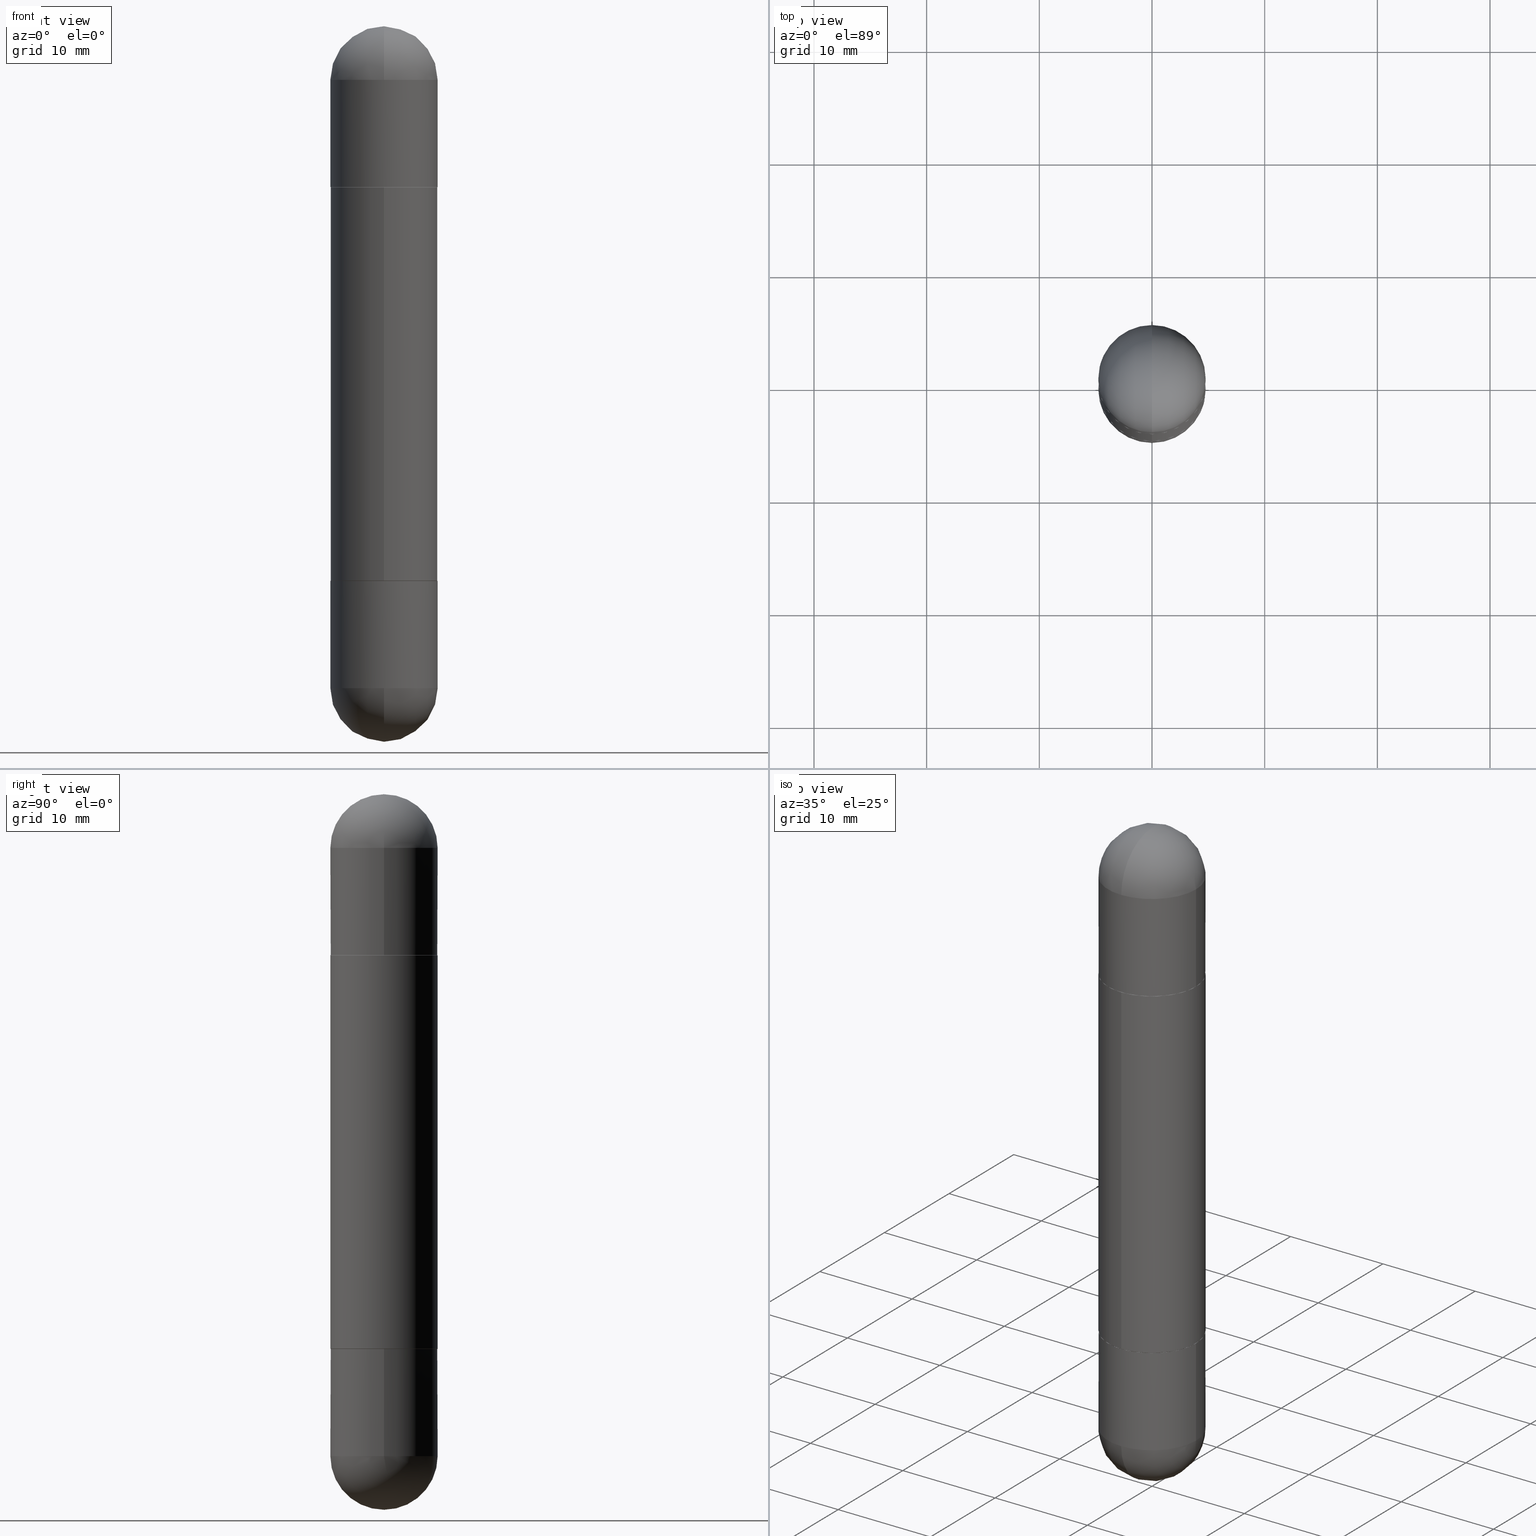
[diagram: canonical four-view strip — front | top / right | iso, engineering-drawing reading convention]
A machine part, canonical four-view strip (front | top / right | iso — engineering-drawing reading convention). The complete STEP part file that produces these views, byte-faithful:
ISO-10303-21;
HEADER;
FILE_DESCRIPTION (( 'STEP AP203' ),
    '1' );
FILE_NAME ('31436.STEP',
    '2024-03-01T12:41:48',
    ( '' ),
    ( '' ),
    'SwSTEP 2.0',
    'SolidWorks 2023',
    '' );
FILE_SCHEMA (( 'CONFIG_CONTROL_DESIGN' ));
ENDSEC;

DATA;
#1 = CARTESIAN_POINT ( 'NONE',  ( 5.655146614303128380E-29, -8.074050596074775072E-15, -2.312500000000000000 ) ) ;
#2 = CARTESIAN_POINT ( 'NONE',  ( -1.302322539388441071E-15, -0.1865000000000067437, -0.5620000000000013873 ) ) ;
#3 = CC_DESIGN_SECURITY_CLASSIFICATION ( #805, ( #496 ) ) ;
#4 = ORIENTED_EDGE ( 'NONE', *, *, #210, .F. ) ;
#5 = DIRECTION ( 'NONE',  ( -6.982962677686265922E-15, -1.000000000000000000, 0.000000000000000000 ) ) ;
#6 = VECTOR ( 'NONE', #579, 39.37007874015748143 ) ;
#7 = CARTESIAN_POINT ( 'NONE',  ( 1.286343374582193722E-15, 0.1874999999999934497, -1.937000000000000499 ) ) ;
#8 = DIRECTION ( 'NONE',  ( -2.444965825479166385E-29, 3.492201635841979178E-15, -1.000000000000000000 ) ) ;
#9 = LINE ( 'NONE', #766, #771 ) ;
#10 = DIRECTION ( 'NONE',  ( -2.444965825479166385E-29, 3.492201635841978784E-15, -1.000000000000000000 ) ) ;
#11 = ORIENTED_EDGE ( 'NONE', *, *, #499, .F. ) ;
#12 = VERTEX_POINT ( 'NONE', #72 ) ;
#13 = CARTESIAN_POINT ( 'NONE',  ( -0.1875000000000000278, -6.133927340794232602E-15, -0.5620000000000007212 ) ) ;
#14 = EDGE_CURVE ( 'NONE', #319, #111, #464, .T. ) ;
#15 = ORIENTED_EDGE ( 'NONE', *, *, #675, .F. ) ;
#16 = APPROVAL_PERSON_ORGANIZATION ( #124, #99, #376 ) ;
#17 = DIRECTION ( 'NONE',  ( -0.000000000000000000, -0.000000000000000000, -1.000000000000000000 ) ) ;
#18 = VERTEX_POINT ( 'NONE', #770 ) ;
#19 = DIRECTION ( 'NONE',  ( 6.860497997771530774E-15, 1.000000000000000000, 0.000000000000000000 ) ) ;
#20 = CIRCLE ( 'NONE', #621, 0.1875000000000001110 ) ;
#21 = AXIS2_PLACEMENT_3D ( 'NONE', #273, #218, #36 ) ;
#22 = VERTEX_POINT ( 'NONE', #196 ) ;
#23 = FACE_OUTER_BOUND ( 'NONE', #419, .T. ) ;
#24 = DIRECTION ( 'NONE',  ( -2.444965825479166385E-29, 3.492201635841978784E-15, -1.000000000000000000 ) ) ;
#25 = CARTESIAN_POINT ( 'NONE',  ( 0.000000000000000000, 0.000000000000000000, -2.500000000000000444 ) ) ;
#26 = FACE_OUTER_BOUND ( 'NONE', #368, .T. ) ;
#27 = APPROVAL ( #495, 'UNSPECIFIED' ) ;
#28 = AXIS2_PLACEMENT_3D ( 'NONE', #290, #627, #500 ) ;
#29 = CARTESIAN_POINT ( 'NONE',  ( -1.302322539388441071E-15, -0.1865000000000067437, -0.5620000000000013873 ) ) ;
#30 = EDGE_CURVE ( 'NONE', #423, #807, #278, .T. ) ;
#31 = CARTESIAN_POINT ( 'NONE',  ( -1.332267629550134009E-15, -0.1875000000000084932, -2.312499999999999556 ) ) ;
#32 = CIRCLE ( 'NONE', #149, 0.1875000000000000555 ) ;
#33 = DIRECTION ( 'NONE',  ( -4.937700262164969294E-15, -0.7071067811866054154, -0.7071067811864896191 ) ) ;
#34 = CARTESIAN_POINT ( 'NONE',  ( 0.000000000000000000, 0.000000000000000000, -2.500000000000000444 ) ) ;
#35 = EDGE_CURVE ( 'NONE', #200, #319, #604, .T. ) ;
#36 = DIRECTION ( 'NONE',  ( 1.000000000000000000, -6.982962677686270655E-15, 0.000000000000000000 ) ) ;
#37 = DIRECTION ( 'NONE',  ( -6.982962677686265922E-15, -1.000000000000000000, 0.000000000000000000 ) ) ;
#38 = ORIENTED_EDGE ( 'NONE', *, *, #790, .T. ) ;
#39 = CARTESIAN_POINT ( 'NONE',  ( 0.000000000000000000, 0.000000000000000000, -2.500000000000000444 ) ) ;
#40 = DIRECTION ( 'NONE',  ( 1.000000000000000000, -6.982962677686266711E-15, -4.883557194083113462E-29 ) ) ;
#41 = MANIFOLD_SOLID_BREP ( 'Mirror4[3]', #498 ) ;
#42 = VERTEX_POINT ( 'NONE', #715 ) ;
#43 = AXIS2_PLACEMENT_3D ( 'NONE', #708, #586, #343 ) ;
#44 = AXIS2_PLACEMENT_3D ( 'NONE', #250, #174, #501 ) ;
#45 = DIRECTION ( 'NONE',  ( 1.000000000000000000, -6.982962677686270655E-15, 0.000000000000000000 ) ) ;
#46 = CARTESIAN_POINT ( 'NONE',  ( 5.324026836389243254E-29, -8.548232964214825368E-15, -0.1875000000000006661 ) ) ;
#47 = ORIENTED_EDGE ( 'NONE', *, *, #535, .T. ) ;
#48 = ORIENTED_EDGE ( 'NONE', *, *, #378, .F. ) ;
#49 = ADVANCED_FACE ( 'NONE', ( #702 ), #658, .T. ) ;
#50 = CARTESIAN_POINT ( 'NONE',  ( -0.1875000000000000555, 1.286343374582162562E-15, -2.500000000000000444 ) ) ;
#51 = VERTEX_POINT ( 'NONE', #142 ) ;
#52 = CARTESIAN_POINT ( 'NONE',  ( 1.328714915871435071E-15, 0.1864999999999932268, -1.938000000000000389 ) ) ;
#53 = CARTESIAN_POINT ( 'NONE',  ( 0.1875000000000000555, -8.729576217442571356E-15, -2.312500000000000000 ) ) ;
#54 = ORIENTED_EDGE ( 'NONE', *, *, #742, .T. ) ;
#55 = AXIS2_PLACEMENT_3D ( 'NONE', #779, #156, #600 ) ;
#56 = ORIENTED_EDGE ( 'NONE', *, *, #63, .T. ) ;
#57 = CALENDAR_DATE ( 2024, 1, 3 ) ;
#58 = CIRCLE ( 'NONE', #783, 0.1864999999999999714 ) ;
#59 = CARTESIAN_POINT ( 'NONE',  ( -1.302322539388441071E-15, -0.1865000000000067437, -1.937999999999999279 ) ) ;
#60 = CARTESIAN_POINT ( 'NONE',  ( 4.738343769778624379E-29, -6.767886770261754503E-15, -1.937999999999999945 ) ) ;
#61 = AXIS2_PLACEMENT_3D ( 'NONE', #320, #10, #74 ) ;
#62 = PERSON_AND_ORGANIZATION_ROLE ( 'creator' ) ;
#63 = EDGE_CURVE ( 'NONE', #576, #707, #808, .T. ) ;
#64 = CARTESIAN_POINT ( 'NONE',  ( 1.279482876584437493E-15, 0.1864999999999932268, -0.5620000000000000551 ) ) ;
#65 = DATE_TIME_ROLE ( 'creation_date' ) ;
#66 = CARTESIAN_POINT ( 'NONE',  ( 4.739318546386794397E-29, -6.766490834678016045E-15, -0.5620000000000007212 ) ) ;
#67 = VERTEX_POINT ( 'NONE', #578 ) ;
#68 = EDGE_LOOP ( 'NONE', ( #617, #493 ) ) ;
#69 = DIRECTION ( 'NONE',  ( 4.851104656541377638E-15, 0.7071067811866103003, -0.7071067811864847341 ) ) ;
#70 = AXIS2_PLACEMENT_3D ( 'NONE', #732, #734, #407 ) ;
#71 = AXIS2_PLACEMENT_3D ( 'NONE', #812, #187, #439 ) ;
#72 = CARTESIAN_POINT ( 'NONE',  ( 1.286343374582210880E-15, 0.1874999999999935052, -0.5630000000000001670 ) ) ;
#73 = PRODUCT_DEFINITION_SHAPE ( 'NONE', 'NONE',  #434 ) ;
#74 = DIRECTION ( 'NONE',  ( -6.982962677686266711E-15, -1.000000000000000000, -2.913971193241879189E-15 ) ) ;
#75 = EDGE_LOOP ( 'NONE', ( #503, #509, #255, #261 ) ) ;
#76 = DIRECTION ( 'NONE',  ( -2.445468806185136877E-29, 3.491481338843145188E-15, 1.000000000000000000 ) ) ;
#77 = EDGE_CURVE ( 'NONE', #690, #51, #108, .T. ) ;
#78 = DIRECTION ( 'NONE',  ( -1.000000000000000000, 6.982962677686265922E-15, 4.883557194083112340E-29 ) ) ;
#79 = ORIENTED_EDGE ( 'NONE', *, *, #138, .T. ) ;
#80 = DIRECTION ( 'NONE',  ( 6.982962677686266711E-15, 1.000000000000000000, -2.913971193241875639E-15 ) ) ;
#81 = ADVANCED_BREP_SHAPE_REPRESENTATION ( '31436', ( #315, #291, #41, #300, #591, #551 ), #561 ) ;
#82 = CARTESIAN_POINT ( 'NONE',  ( 5.324026836389243254E-29, -8.548232964214825368E-15, -0.1875000000000006661 ) ) ;
#83 = EDGE_LOOP ( 'NONE', ( #321, #589, #139, #520 ) ) ;
#84 = AXIS2_PLACEMENT_3D ( 'NONE', #547, #275, #539 ) ;
#85 = VERTEX_POINT ( 'NONE', #7 ) ;
#86 = DIRECTION ( 'NONE',  ( -2.444965825479166385E-29, 3.492201635841978784E-15, 1.000000000000000000 ) ) ;
#87 = CARTESIAN_POINT ( 'NONE',  ( 4.738343769778624379E-29, -6.767886770261754503E-15, -0.5620000000000007212 ) ) ;
#88 = DIRECTION ( 'NONE',  ( 2.445468806185136597E-29, -3.491481338843145583E-15, 1.000000000000000000 ) ) ;
#89 = DIRECTION ( 'NONE',  ( -2.445468806185136877E-29, 3.491481338843145188E-15, -1.000000000000000000 ) ) ;
#90 = VERTEX_POINT ( 'NONE', #13 ) ;
#91 = PLANE ( 'NONE',  #95 ) ;
#92 = EDGE_CURVE ( 'NONE', #111, #619, #310, .T. ) ;
#93 = CARTESIAN_POINT ( 'NONE',  ( 4.738343769778624379E-29, -6.767886770261754503E-15, -0.5620000000000007212 ) ) ;
#94 = CIRCLE ( 'NONE', #256, 0.1864999999999999714 ) ;
#95 = AXIS2_PLACEMENT_3D ( 'NONE', #605, #726, #350 ) ;
#96 = PLANE ( 'NONE',  #699 ) ;
#97 = DIRECTION ( 'NONE',  ( 2.444965825479166385E-29, -3.492201635841978784E-15, 1.000000000000000000 ) ) ;
#98 = ORIENTED_EDGE ( 'NONE', *, *, #381, .F. ) ;
#99 = APPROVAL ( #815, 'UNSPECIFIED' ) ;
#100 = DIRECTION ( 'NONE',  ( 6.982962677686265922E-15, 1.000000000000000000, 0.000000000000000000 ) ) ;
#101 = SPHERICAL_SURFACE ( 'NONE', #659, 0.1875000000000003331 ) ;
#102 = VERTEX_POINT ( 'NONE', #467 ) ;
#103 = EDGE_CURVE ( 'NONE', #716, #119, #9, .T. ) ;
#104 = FACE_OUTER_BOUND ( 'NONE', #197, .T. ) ;
#105 = DIRECTION ( 'NONE',  ( -2.445468806185136877E-29, 3.491481338843145188E-15, -1.000000000000000000 ) ) ;
#106 = ORIENTED_EDGE ( 'NONE', *, *, #737, .T. ) ;
#107 = ORIENTED_EDGE ( 'NONE', *, *, #477, .T. ) ;
#108 = CIRCLE ( 'NONE', #667, 0.1875000000000000555 ) ;
#109 = AXIS2_PLACEMENT_3D ( 'NONE', #167, #746, #680 ) ;
#110 = DIRECTION ( 'NONE',  ( 1.000000000000000000, -6.982962677686270655E-15, 0.000000000000000000 ) ) ;
#111 = VERTEX_POINT ( 'NONE', #145 ) ;
#112 = EDGE_CURVE ( 'NONE', #711, #200, #339, .T. ) ;
#113 = VERTEX_POINT ( 'NONE', #2 ) ;
#114 = ORIENTED_EDGE ( 'NONE', *, *, #489, .T. ) ;
#115 = PERSON_AND_ORGANIZATION_ROLE ( 'design_owner' ) ;
#116 = DIRECTION ( 'NONE',  ( -2.444965825479166385E-29, 3.492201635841978784E-15, -1.000000000000000000 ) ) ;
#117 = UNCERTAINTY_MEASURE_WITH_UNIT (LENGTH_MEASURE( 1.000000000000000082E-05 ), #301, 'distance_accuracy_value', 'NONE');
#118 = CARTESIAN_POINT ( 'NONE',  ( 5.655146614303128380E-29, -8.074050596074775072E-15, -0.1875000000000006661 ) ) ;
#119 = VERTEX_POINT ( 'NONE', #264 ) ;
#120 = COORDINATED_UNIVERSAL_TIME_OFFSET ( 5, 0, .BEHIND. ) ;
#121 = DIRECTION ( 'NONE',  ( 1.000000000000000000, -6.982962677686265922E-15, 4.883557194083112340E-29 ) ) ;
#122 = EDGE_CURVE ( 'NONE', #329, #67, #58, .T. ) ;
#123 = FACE_OUTER_BOUND ( 'NONE', #68, .T. ) ;
#124 = PERSON_AND_ORGANIZATION ( #392, #217 ) ;
#125 = AXIS2_PLACEMENT_3D ( 'NONE', #277, #163, #483 ) ;
#126 = DIRECTION ( 'NONE',  ( -2.444965825479166385E-29, 3.492201635841978784E-15, -1.000000000000000000 ) ) ;
#127 = AXIS2_PLACEMENT_3D ( 'NONE', #447, #262, #521 ) ;
#128 = CC_DESIGN_PERSON_AND_ORGANIZATION_ASSIGNMENT ( #748, #560, ( #434 ) ) ;
#129 = DIRECTION ( 'NONE',  ( 1.000000000000000000, -6.982962677686270655E-15, 0.000000000000000000 ) ) ;
#130 = ORIENTED_EDGE ( 'NONE', *, *, #468, .T. ) ;
#131 = DIRECTION ( 'NONE',  ( 2.445468806185136597E-29, -3.491481338843145583E-15, 1.000000000000000000 ) ) ;
#132 = EDGE_LOOP ( 'NONE', ( #235, #56, #775, #714 ) ) ;
#133 = AXIS2_PLACEMENT_3D ( 'NONE', #25, #533, #344 ) ;
#134 = FACE_OUTER_BOUND ( 'NONE', #437, .T. ) ;
#135 = ORIENTED_EDGE ( 'NONE', *, *, #767, .F. ) ;
#136 = AXIS2_PLACEMENT_3D ( 'NONE', #34, #345, #283 ) ;
#137 = CARTESIAN_POINT ( 'NONE',  ( 5.324026836389243254E-29, -8.548232964214825368E-15, -2.312500000000000000 ) ) ;
#138 = EDGE_CURVE ( 'NONE', #42, #12, #445, .T. ) ;
#139 = ORIENTED_EDGE ( 'NONE', *, *, #742, .F. ) ;
#140 = CARTESIAN_POINT ( 'NONE',  ( 5.324026836389243254E-29, -8.548232964214825368E-15, -0.1875000000000006661 ) ) ;
#141 = ADVANCED_FACE ( 'NONE', ( #663 ), #430, .T. ) ;
#142 = CARTESIAN_POINT ( 'NONE',  ( 1.309305502066231017E-15, 0.1874999999999918954, -0.1875000000000000278 ) ) ;
#143 = CARTESIAN_POINT ( 'NONE',  ( 1.309305502066222340E-15, 0.1874999999999932554, -0.5620000000000001661 ) ) ;
#144 = EDGE_CURVE ( 'NONE', #487, #764, #781, .T. ) ;
#145 = CARTESIAN_POINT ( 'NONE',  ( 0.1875000000000000278, -8.075796336744191053E-15, -1.937999999999999945 ) ) ;
#146 = LOCAL_TIME ( 7, 41, 48.00000000000000000, #365 ) ;
#147 = FACE_OUTER_BOUND ( 'NONE', #263, .T. ) ;
#148 = SPHERICAL_SURFACE ( 'NONE', #593, 0.1875000000000003331 ) ;
#149 = AXIS2_PLACEMENT_3D ( 'NONE', #534, #479, #602 ) ;
#150 = DIRECTION ( 'NONE',  ( 2.438088387897960049E-29, -3.491481338843145188E-15, -1.000000000000000000 ) ) ;
#151 = DIRECTION ( 'NONE',  ( 2.444965825479166385E-29, -3.492201635841978784E-15, 1.000000000000000000 ) ) ;
#152 = ORIENTED_EDGE ( 'NONE', *, *, #158, .F. ) ;
#153 = SPHERICAL_SURFACE ( 'NONE', #692, 0.1875000000000003331 ) ;
#154 = DIRECTION ( 'NONE',  ( 1.000000000000000000, -6.982962677686266711E-15, -4.883557194083113462E-29 ) ) ;
#155 = ORIENTED_EDGE ( 'NONE', *, *, #138, .F. ) ;
#156 = DIRECTION ( 'NONE',  ( -2.445468806185136597E-29, 3.491481338843145583E-15, 1.000000000000000000 ) ) ;
#157 = DIRECTION ( 'NONE',  ( -6.982962677686265922E-15, -1.000000000000000000, -3.661994629576761260E-15 ) ) ;
#158 = EDGE_CURVE ( 'NONE', #764, #18, #179, .T. ) ;
#159 = AXIS2_PLACEMENT_3D ( 'NONE', #564, #754, #302 ) ;
#160 = ORIENTED_EDGE ( 'NONE', *, *, #767, .T. ) ;
#161 = AXIS2_PLACEMENT_3D ( 'NONE', #575, #700, #768 ) ;
#162 = CARTESIAN_POINT ( 'NONE',  ( 4.738343769778624379E-29, -6.767886770261754503E-15, -1.937999999999999945 ) ) ;
#163 = DIRECTION ( 'NONE',  ( -0.000000000000000000, -0.000000000000000000, -1.000000000000000000 ) ) ;
#164 = ORIENTED_EDGE ( 'NONE', *, *, #233, .T. ) ;
#165 = EDGE_CURVE ( 'NONE', #383, #113, #94, .T. ) ;
#166 = DIRECTION ( 'NONE',  ( -6.982962677686266711E-15, -1.000000000000000000, -2.913971193241879189E-15 ) ) ;
#167 = CARTESIAN_POINT ( 'NONE',  ( 4.738343769778624379E-29, -6.767886770261754503E-15, -0.5620000000000007212 ) ) ;
#168 = ORIENTED_EDGE ( 'NONE', *, *, #626, .T. ) ;
#169 = ORIENTED_EDGE ( 'NONE', *, *, #628, .F. ) ;
#170 = VERTEX_POINT ( 'NONE', #412 ) ;
#171 = FACE_OUTER_BOUND ( 'NONE', #206, .T. ) ;
#172 = CIRCLE ( 'NONE', #426, 0.1875000000000003331 ) ;
#173 = AXIS2_PLACEMENT_3D ( 'NONE', #143, #403, #731 ) ;
#174 = DIRECTION ( 'NONE',  ( -2.444965825479166385E-29, 3.492201635841978784E-15, 1.000000000000000000 ) ) ;
#175 = ORIENTED_EDGE ( 'NONE', *, *, #778, .T. ) ;
#176 = EDGE_LOOP ( 'NONE', ( #739, #701, #644, #396 ) ) ;
#177 = PERSON_AND_ORGANIZATION_ROLE ( 'classification_officer' ) ;
#178 = EDGE_CURVE ( 'NONE', #690, #653, #672, .T. ) ;
#179 = CIRCLE ( 'NONE', #245, 0.1875000000000000278 ) ;
#180 = CONICAL_SURFACE ( 'NONE', #341, 0.1864999999999999714, 0.7853981633975336552 ) ;
#181 = DIRECTION ( 'NONE',  ( -2.444965825479166385E-29, 3.492201635841978784E-15, -1.000000000000000000 ) ) ;
#182 = DIRECTION ( 'NONE',  ( -2.444965825479166385E-29, 3.492201635841979178E-15, -1.000000000000000000 ) ) ;
#183 = ORIENTED_EDGE ( 'NONE', *, *, #92, .F. ) ;
#184 = CALENDAR_DATE ( 2024, 1, 3 ) ;
#185 = EDGE_CURVE ( 'NONE', #12, #42, #311, .T. ) ;
#186 = DIRECTION ( 'NONE',  ( 1.000000000000000000, -6.982962677686266711E-15, 0.000000000000000000 ) ) ;
#187 = DIRECTION ( 'NONE',  ( 1.000000000000000000, -6.860497997771530774E-15, -4.840798879624142912E-29 ) ) ;
#188 = PERSON_AND_ORGANIZATION ( #392, #217 ) ;
#189 = DIRECTION ( 'NONE',  ( 1.000000000000000000, 0.000000000000000000, 0.000000000000000000 ) ) ;
#190 = DIRECTION ( 'NONE',  ( 6.982962677686266711E-15, 1.000000000000000000, 3.460340791974727494E-15 ) ) ;
#191 = ORIENTED_EDGE ( 'NONE', *, *, #35, .T. ) ;
#192 = APPROVAL ( #752, 'UNSPECIFIED' ) ;
#193 = FACE_OUTER_BOUND ( 'NONE', #787, .T. ) ;
#194 = DIRECTION ( 'NONE',  ( -2.445468806185136597E-29, 3.491481338843145583E-15, 1.000000000000000000 ) ) ;
#195 = LINE ( 'NONE', #252, #6 ) ;
#196 = CARTESIAN_POINT ( 'NONE',  ( 0.1875000000000000555, -8.729576217442571356E-15, -0.1875000000000006661 ) ) ;
#197 = EDGE_LOOP ( 'NONE', ( #603, #155, #387, #523 ) ) ;
#198 = EDGE_CURVE ( 'NONE', #22, #337, #32, .T. ) ;
#199 = DIRECTION ( 'NONE',  ( 1.000000000000000000, -6.982962677686266711E-15, 0.000000000000000000 ) ) ;
#200 = VERTEX_POINT ( 'NONE', #31 ) ;
#201 = DIRECTION ( 'NONE',  ( 1.000000000000000000, -6.982962677686266711E-15, 0.000000000000000000 ) ) ;
#202 = APPROVAL_PERSON_ORGANIZATION ( #236, #27, #502 ) ;
#203 = ORIENTED_EDGE ( 'NONE', *, *, #424, .T. ) ;
#204 = CLOSED_SHELL ( 'NONE', ( #491, #318, #639, #712, #654 ) ) ;
#205 = CYLINDRICAL_SURFACE ( 'NONE', #312, 0.1875000000000000555 ) ;
#206 = EDGE_LOOP ( 'NONE', ( #452, #335, #164, #668 ) ) ;
#207 = AXIS2_PLACEMENT_3D ( 'NONE', #607, #222, #777 ) ;
#208 = AXIS2_PLACEMENT_3D ( 'NONE', #1, #508, #129 ) ;
#209 = DIRECTION ( 'NONE',  ( 1.000000000000000000, -6.982962677686270655E-15, 0.000000000000000000 ) ) ;
#210 = EDGE_CURVE ( 'NONE', #399, #51, #230, .T. ) ;
#211 = CARTESIAN_POINT ( 'NONE',  ( 4.738343769778624379E-29, -6.767886770261754503E-15, -0.5620000000000007212 ) ) ;
#212 = ORIENTED_EDGE ( 'NONE', *, *, #628, .T. ) ;
#213 = CARTESIAN_POINT ( 'NONE',  ( 4.739318546386794397E-29, -6.766490834678016045E-15, -1.937999999999999945 ) ) ;
#214 = CARTESIAN_POINT ( 'NONE',  ( 4.738343769778624379E-29, -6.767886770261754503E-15, -0.5620000000000007212 ) ) ;
#215 = CARTESIAN_POINT ( 'NONE',  ( 5.324026836389243254E-29, -8.548232964214825368E-15, -0.1875000000000006661 ) ) ;
#216 = APPLICATION_CONTEXT ( 'configuration controlled 3d designs of mechanical parts and assemblies' ) ;
#217 = ORGANIZATION ( 'UNSPECIFIED', 'UNSPECIFIED', '' ) ;
#218 = DIRECTION ( 'NONE',  ( 2.445468806185136597E-29, -3.491481338843145583E-15, 1.000000000000000000 ) ) ;
#219 = CARTESIAN_POINT ( 'NONE',  ( 4.739318546386794397E-29, -6.766490834678016045E-15, -0.5620000000000007212 ) ) ;
#220 = VECTOR ( 'NONE', #789, 39.37007874015748143 ) ;
#221 = DIRECTION ( 'NONE',  ( 1.000000000000000000, -6.982962677686266711E-15, -4.883557194083113462E-29 ) ) ;
#222 = DIRECTION ( 'NONE',  ( -2.444965825479166385E-29, 3.492201635841978784E-15, 1.000000000000000000 ) ) ;
#223 = EDGE_LOOP ( 'NONE', ( #135, #800 ) ) ;
#224 = FACE_OUTER_BOUND ( 'NONE', #803, .T. ) ;
#225 = DIRECTION ( 'NONE',  ( -1.000000000000000000, 6.982962677686266711E-15, -4.883557194083113462E-29 ) ) ;
#226 = AXIS2_PLACEMENT_3D ( 'NONE', #660, #86, #795 ) ;
#227 = DIRECTION ( 'NONE',  ( -6.982962677686265922E-15, -1.000000000000000000, -3.492201635841979178E-15 ) ) ;
#228 = CARTESIAN_POINT ( 'NONE',  ( 4.735898803953145257E-29, -6.764394568625911806E-15, -0.5630000000000008331 ) ) ;
#229 = CLOSED_SHELL ( 'NONE', ( #552, #49, #247, #612, #642 ) ) ;
#230 = CIRCLE ( 'NONE', #724, 0.1875000000000003331 ) ;
#231 = AXIS2_PLACEMENT_3D ( 'NONE', #66, #88, #542 ) ;
#232 = EDGE_CURVE ( 'NONE', #119, #686, #416, .T. ) ;
#233 = EDGE_CURVE ( 'NONE', #85, #704, #697, .T. ) ;
#234 = CARTESIAN_POINT ( 'NONE',  ( 4.735898803953145257E-29, -6.764394568625911806E-15, -0.5630000000000008331 ) ) ;
#235 = ORIENTED_EDGE ( 'NONE', *, *, #549, .F. ) ;
#236 = PERSON_AND_ORGANIZATION ( #392, #217 ) ;
#237 =( NAMED_UNIT ( * ) PLANE_ANGLE_UNIT ( ) SI_UNIT ( $, .RADIAN. ) );
#238 = CARTESIAN_POINT ( 'NONE',  ( 5.655146614303128380E-29, -8.074050596074775072E-15, -2.312500000000000000 ) ) ;
#239 = LOCAL_TIME ( 7, 41, 48.00000000000000000, #691 ) ;
#240 = DIRECTION ( 'NONE',  ( -2.444965825479166385E-29, 3.492201635841979178E-15, -1.000000000000000000 ) ) ;
#241 = ORIENTED_EDGE ( 'NONE', *, *, #424, .F. ) ;
#242 = CALENDAR_DATE ( 2024, 1, 3 ) ;
#243 = AXIS2_PLACEMENT_3D ( 'NONE', #213, #258, #201 ) ;
#244 = CIRCLE ( 'NONE', #159, 0.1875000000000000555 ) ;
#245 = AXIS2_PLACEMENT_3D ( 'NONE', #219, #793, #596 ) ;
#246 = DIRECTION ( 'NONE',  ( -6.982962677686265922E-15, -1.000000000000000000, 2.929595703661408850E-15 ) ) ;
#247 = ADVANCED_FACE ( 'NONE', ( #286 ), #101, .T. ) ;
#248 = CARTESIAN_POINT ( 'NONE',  ( 1.282913125583324384E-15, 0.1864999999999932268, -0.5620000000000000551 ) ) ;
#249 = MECHANICAL_CONTEXT ( 'NONE', #346, 'mechanical' ) ;
#250 = CARTESIAN_POINT ( 'NONE',  ( 4.738343769778624379E-29, -6.767886770261754503E-15, -1.937999999999999945 ) ) ;
#251 = ADVANCED_FACE ( 'NONE', ( #599 ), #148, .T. ) ;
#252 = CARTESIAN_POINT ( 'NONE',  ( 0.1875000000000000555, -1.309305502066175205E-15, -2.500000000000000444 ) ) ;
#253 = CIRCLE ( 'NONE', #28, 0.1875000000000000555 ) ;
#254 = CARTESIAN_POINT ( 'NONE',  ( 0.1875000000000000555, -1.309305502066175205E-15, 9.142831454617382414E-30 ) ) ;
#255 = ORIENTED_EDGE ( 'NONE', *, *, #232, .F. ) ;
#256 = AXIS2_PLACEMENT_3D ( 'NONE', #87, #475, #157 ) ;
#257 = LINE ( 'NONE', #516, #325 ) ;
#258 = DIRECTION ( 'NONE',  ( -2.445468806185136597E-29, 3.491481338843145583E-15, 1.000000000000000000 ) ) ;
#259 = CARTESIAN_POINT ( 'NONE',  ( 1.286343374582210880E-15, 0.1874999999999935052, -0.5630000000000001670 ) ) ;
#260 = EDGE_LOOP ( 'NONE', ( #616, #48, #507, #458 ) ) ;
#261 = ORIENTED_EDGE ( 'NONE', *, *, #103, .F. ) ;
#262 = DIRECTION ( 'NONE',  ( 2.438088387897960049E-29, -3.491481338843145188E-15, 1.000000000000000000 ) ) ;
#263 = EDGE_LOOP ( 'NONE', ( #453, #241, #572, #114, #130 ) ) ;
#264 = CARTESIAN_POINT ( 'NONE',  ( -1.309305502066136946E-15, -0.1875000000000044964, -1.250000000000000222 ) ) ;
#265 = ADVANCED_FACE ( 'NONE', ( #666 ), #180, .T. ) ;
#266 = EDGE_LOOP ( 'NONE', ( #299, #719, #529, #515 ) ) ;
#267 = DIRECTION ( 'NONE',  ( -2.445468806185136597E-29, 3.491481338843145583E-15, -1.000000000000000000 ) ) ;
#268 = ORIENTED_EDGE ( 'NONE', *, *, #144, .T. ) ;
#269 = CIRCLE ( 'NONE', #735, 0.1875000000000000278 ) ;
#270 = EDGE_LOOP ( 'NONE', ( #4, #517, #454, #408 ) ) ;
#271 = CARTESIAN_POINT ( 'NONE',  ( -1.309305502066129254E-15, -0.1875000000000069944, -1.936999999999999389 ) ) ;
#272 = CARTESIAN_POINT ( 'NONE',  ( -0.1875000000000000555, 1.286343374582162562E-15, -2.500000000000000444 ) ) ;
#273 = CARTESIAN_POINT ( 'NONE',  ( 5.655146614303128380E-29, -8.074050596074775072E-15, -0.1875000000000006661 ) ) ;
#274 = DIMENSIONAL_EXPONENTS ( 1.000000000000000000, 0.000000000000000000, 0.000000000000000000, 0.000000000000000000, 0.000000000000000000, 0.000000000000000000, 0.000000000000000000 ) ;
#275 = DIRECTION ( 'NONE',  ( -2.444965825479166385E-29, 3.492201635841978784E-15, -1.000000000000000000 ) ) ;
#276 = FACE_OUTER_BOUND ( 'NONE', #303, .T. ) ;
#277 = CARTESIAN_POINT ( 'NONE',  ( 3.056207281848959032E-29, -4.365252044802474861E-15, -1.250000000000000222 ) ) ;
#278 = CIRCLE ( 'NONE', #541, 0.1864999999999999714 ) ;
#279 = AXIS2_PLACEMENT_3D ( 'NONE', #60, #314, #570 ) ;
#280 = ORIENTED_EDGE ( 'NONE', *, *, #468, .F. ) ;
#281 = ADVANCED_FACE ( 'NONE', ( #351 ), #405, .T. ) ;
#282 = DIRECTION ( 'NONE',  ( 1.000000000000000000, -6.982962677686270655E-15, 0.000000000000000000 ) ) ;
#283 = DIRECTION ( 'NONE',  ( 1.000000000000000000, -6.982962677686265922E-15, 0.000000000000000000 ) ) ;
#284 = ORIENTED_EDGE ( 'NONE', *, *, #77, .F. ) ;
#285 = CARTESIAN_POINT ( 'NONE',  ( 5.655146614303128380E-29, -8.074050596074775072E-15, -0.1875000000000006661 ) ) ;
#286 = FACE_OUTER_BOUND ( 'NONE', #648, .T. ) ;
#287 = ORIENTED_EDGE ( 'NONE', *, *, #323, .F. ) ;
#288 = ADVANCED_FACE ( 'NONE', ( #26 ), #366, .T. ) ;
#289 = AXIS2_PLACEMENT_3D ( 'NONE', #688, #613, #186 ) ;
#290 = CARTESIAN_POINT ( 'NONE',  ( 5.655146614303128380E-29, -8.074050596074775072E-15, -0.1875000000000006661 ) ) ;
#291 = MANIFOLD_SOLID_BREP ( 'Mirror4[1]', #760 ) ;
#292 = FACE_OUTER_BOUND ( 'NONE', #386, .T. ) ;
#293 = CC_DESIGN_DATE_AND_TIME_ASSIGNMENT ( #744, #371, ( #805 ) ) ;
#294 = EDGE_LOOP ( 'NONE', ( #441, #372, #338, #15 ) ) ;
#295 = CIRCLE ( 'NONE', #446, 0.1875000000000000555 ) ;
#296 = FACE_OUTER_BOUND ( 'NONE', #705, .T. ) ;
#297 = SPHERICAL_SURFACE ( 'NONE', #554, 0.1875000000000003331 ) ;
#298 = ORIENTED_EDGE ( 'NONE', *, *, #562, .T. ) ;
#299 = ORIENTED_EDGE ( 'NONE', *, *, #443, .F. ) ;
#300 = MANIFOLD_SOLID_BREP ( 'Mirror4[4]', #204 ) ;
#301 =( CONVERSION_BASED_UNIT ( 'INCH', #481 ) LENGTH_UNIT ( ) NAMED_UNIT ( #274 ) );
#302 = DIRECTION ( 'NONE',  ( 1.000000000000000000, -6.982962677686270655E-15, 0.000000000000000000 ) ) ;
#303 = EDGE_LOOP ( 'NONE', ( #168, #782 ) ) ;
#304 = APPROVAL_DATE_TIME ( #488, #27 ) ;
#305 = CYLINDRICAL_SURFACE ( 'NONE', #389, 0.1875000000000001110 ) ;
#306 = CIRCLE ( 'NONE', #289, 0.1875000000000000278 ) ;
#307 = CARTESIAN_POINT ( 'NONE',  ( 5.655146614303128380E-29, -8.074050596074775072E-15, -0.1875000000000006661 ) ) ;
#308 = EDGE_LOOP ( 'NONE', ( #169, #268, #751, #728, #573 ) ) ;
#309 = APPROVAL_DATE_TIME ( #683, #192 ) ;
#310 = CIRCLE ( 'NONE', #243, 0.1875000000000000278 ) ;
#311 = CIRCLE ( 'NONE', #484, 0.1875000000000002220 ) ;
#312 = AXIS2_PLACEMENT_3D ( 'NONE', #462, #774, #316 ) ;
#313 = DIRECTION ( 'NONE',  ( -2.444965825479166385E-29, 3.492201635841978784E-15, -1.000000000000000000 ) ) ;
#314 = DIRECTION ( 'NONE',  ( -2.444965825479165824E-29, 3.492201635841979178E-15, 1.000000000000000000 ) ) ;
#315 = MANIFOLD_SOLID_BREP ( 'Body-Move/Copy2[1]', #229 ) ;
#316 = DIRECTION ( 'NONE',  ( 1.000000000000000000, -6.982962677686265922E-15, 4.876176775795935793E-29 ) ) ;
#317 = CALENDAR_DATE ( 2024, 1, 3 ) ;
#318 = ADVANCED_FACE ( 'NONE', ( #741 ), #435, .T. ) ;
#319 = VERTEX_POINT ( 'NONE', #53 ) ;
#320 = CARTESIAN_POINT ( 'NONE',  ( 0.000000000000000000, 0.000000000000000000, -2.500000000000000444 ) ) ;
#321 = ORIENTED_EDGE ( 'NONE', *, *, #790, .F. ) ;
#322 = CARTESIAN_POINT ( 'NONE',  ( 5.324026836389243254E-29, -8.548232964214825368E-15, -0.1875000000000006661 ) ) ;
#323 = EDGE_CURVE ( 'NONE', #390, #690, #295, .T. ) ;
#324 = EDGE_LOOP ( 'NONE', ( #280, #152 ) ) ;
#325 = VECTOR ( 'NONE', #69, 39.37007874015748143 ) ;
#326 = DIRECTION ( 'NONE',  ( -2.445468806185136597E-29, 3.491481338843145583E-15, -1.000000000000000000 ) ) ;
#327 = EDGE_CURVE ( 'NONE', #170, #619, #694, .T. ) ;
#328 = PRODUCT ( '31436', '31436', '', ( #249 ) ) ;
#329 = VERTEX_POINT ( 'NONE', #248 ) ;
#330 = ORIENTED_EDGE ( 'NONE', *, *, #122, .F. ) ;
#331 = PLANE ( 'NONE',  #127 ) ;
#332 = ORIENTED_EDGE ( 'NONE', *, *, #14, .T. ) ;
#333 = ADVANCED_FACE ( 'NONE', ( #292 ), #606, .T. ) ;
#334 = DIRECTION ( 'NONE',  ( -6.982962677686265922E-15, -1.000000000000000000, 2.929595703661408850E-15 ) ) ;
#335 = ORIENTED_EDGE ( 'NONE', *, *, #355, .T. ) ;
#336 = FACE_OUTER_BOUND ( 'NONE', #308, .T. ) ;
#337 = VERTEX_POINT ( 'NONE', #559 ) ;
#338 = ORIENTED_EDGE ( 'NONE', *, *, #530, .T. ) ;
#339 = CIRCLE ( 'NONE', #43, 0.1875000000000003331 ) ;
#340 = CARTESIAN_POINT ( 'NONE',  ( 0.1875000000000000278, -8.075796336744191053E-15, -0.5620000000000007212 ) ) ;
#341 = AXIS2_PLACEMENT_3D ( 'NONE', #93, #24, #723 ) ;
#342 = AXIS2_PLACEMENT_3D ( 'NONE', #548, #537, #546 ) ;
#343 = DIRECTION ( 'NONE',  ( -7.105427357600999492E-15, -1.000000000000000000, 0.000000000000000000 ) ) ;
#344 = DIRECTION ( 'NONE',  ( 1.000000000000000000, -6.982962677686265922E-15, 0.000000000000000000 ) ) ;
#345 = DIRECTION ( 'NONE',  ( -2.445468806185136597E-29, 3.491481338843145583E-15, -1.000000000000000000 ) ) ;
#346 = APPLICATION_CONTEXT ( 'configuration controlled 3d designs of mechanical parts and assemblies' ) ;
#347 = CARTESIAN_POINT ( 'NONE',  ( -1.286343374582108525E-15, -0.1875000000000084932, -0.1875000000000013045 ) ) ;
#348 = DIRECTION ( 'NONE',  ( 2.444965825479166385E-29, -3.492201635841978784E-15, 1.000000000000000000 ) ) ;
#349 = CC_DESIGN_APPROVAL ( #192, ( #496 ) ) ;
#350 = DIRECTION ( 'NONE',  ( -6.982962677686265922E-15, -1.000000000000000000, -3.492201635841979178E-15 ) ) ;
#351 = FACE_OUTER_BOUND ( 'NONE', #814, .T. ) ;
#352 = VECTOR ( 'NONE', #182, 39.37007874015748143 ) ;
#353 = CIRCLE ( 'NONE', #161, 0.1864999999999999714 ) ;
#354 = PLANE ( 'NONE',  #401 ) ;
#355 = EDGE_CURVE ( 'NONE', #12, #85, #486, .T. ) ;
#356 = CARTESIAN_POINT ( 'NONE',  ( 5.324026836389243254E-29, -8.548232964214825368E-15, -0.1875000000000006661 ) ) ;
#357 = ADVANCED_FACE ( 'NONE', ( #497 ), #297, .T. ) ;
#358 =( NAMED_UNIT ( * ) SI_UNIT ( $, .STERADIAN. ) SOLID_ANGLE_UNIT ( ) );
#359 = CARTESIAN_POINT ( 'NONE',  ( -0.1875000000000000555, 1.332267629550188243E-15, -9.223003294227950793E-30 ) ) ;
#360 = ORIENTED_EDGE ( 'NONE', *, *, #582, .T. ) ;
#361 = CC_DESIGN_APPROVAL ( #99, ( #805 ) ) ;
#362 = CARTESIAN_POINT ( 'NONE',  ( -0.1875000000000000278, -6.133927340794232602E-15, -0.5620000000000007212 ) ) ;
#363 = CARTESIAN_POINT ( 'NONE',  ( 1.282913125583324384E-15, 0.1864999999999932268, -0.5620000000000000551 ) ) ;
#364 = ORIENTED_EDGE ( 'NONE', *, *, #92, .T. ) ;
#365 = COORDINATED_UNIVERSAL_TIME_OFFSET ( 5, 0, .BEHIND. ) ;
#366 = CONICAL_SURFACE ( 'NONE', #84, 0.1864999999999999714, 0.7853981633975336552 ) ;
#367 = DIRECTION ( 'NONE',  ( -2.445468806185136877E-29, 3.491481338843145188E-15, 1.000000000000000000 ) ) ;
#368 = EDGE_LOOP ( 'NONE', ( #330, #545, #557, #622 ) ) ;
#369 = CARTESIAN_POINT ( 'NONE',  ( 4.739318546386794397E-29, -6.766490834678016045E-15, -1.937999999999999945 ) ) ;
#370 = CARTESIAN_POINT ( 'NONE',  ( 1.286343374582162760E-15, 0.1875000000000001110, -2.500000000000000000 ) ) ;
#371 = DATE_TIME_ROLE ( 'classification_date' ) ;
#372 = ORIENTED_EDGE ( 'NONE', *, *, #519, .T. ) ;
#373 = DIRECTION ( 'NONE',  ( -2.445468806185136597E-29, 3.491481338843145583E-15, 1.000000000000000000 ) ) ;
#374 = AXIS2_PLACEMENT_3D ( 'NONE', #676, #116, #433 ) ;
#375 = PLANE ( 'NONE',  #279 ) ;
#376 = APPROVAL_ROLE ( '' ) ;
#377 = CONICAL_SURFACE ( 'NONE', #750, 0.1864999999999999714, 0.7853981633975336552 ) ;
#378 = EDGE_CURVE ( 'NONE', #716, #524, #565, .T. ) ;
#379 = CIRCLE ( 'NONE', #231, 0.1875000000000000278 ) ;
#380 = DIRECTION ( 'NONE',  ( 2.444965825479166385E-29, -3.492201635841978784E-15, 1.000000000000000000 ) ) ;
#381 = EDGE_CURVE ( 'NONE', #394, #90, #677, .T. ) ;
#382 = ORIENTED_EDGE ( 'NONE', *, *, #567, .T. ) ;
#383 = VERTEX_POINT ( 'NONE', #363 ) ;
#384 = CC_DESIGN_PERSON_AND_ORGANIZATION_ASSIGNMENT ( #188, #62, ( #496 ) ) ;
#385 = CYLINDRICAL_SURFACE ( 'NONE', #61, 0.1875000000000001110 ) ;
#386 = EDGE_LOOP ( 'NONE', ( #11, #391, #360, #79 ) ) ;
#387 = ORIENTED_EDGE ( 'NONE', *, *, #410, .T. ) ;
#388 = CYLINDRICAL_SURFACE ( 'NONE', #681, 0.1875000000000000555 ) ;
#389 = AXIS2_PLACEMENT_3D ( 'NONE', #39, #181, #809 ) ;
#390 = VERTEX_POINT ( 'NONE', #444 ) ;
#391 = ORIENTED_EDGE ( 'NONE', *, *, #535, .F. ) ;
#392 = PERSON ( 'UNSPECIFIED', 'UNSPECIFIED', 'UNSPECIFIED', ('UNSPECIFIED'), ('UNSPECIFIED'), ('UNSPECIFIED') ) ;
#393 = CYLINDRICAL_SURFACE ( 'NONE', #527, 0.1875000000000000555 ) ;
#394 = VERTEX_POINT ( 'NONE', #556 ) ;
#395 = DIRECTION ( 'NONE',  ( -6.982962677686265922E-15, -1.000000000000000000, -3.661994629576761260E-15 ) ) ;
#396 = ORIENTED_EDGE ( 'NONE', *, *, #378, .T. ) ;
#397 = ORIENTED_EDGE ( 'NONE', *, *, #450, .T. ) ;
#398 = CARTESIAN_POINT ( 'NONE',  ( 1.309305502066222340E-15, 0.1874999999999932554, -1.938000000000000389 ) ) ;
#399 = VERTEX_POINT ( 'NONE', #798 ) ;
#400 = EDGE_CURVE ( 'NONE', #319, #102, #710, .T. ) ;
#401 = AXIS2_PLACEMENT_3D ( 'NONE', #214, #470, #227 ) ;
#402 = AXIS2_PLACEMENT_3D ( 'NONE', #448, #194, #209 ) ;
#403 = DIRECTION ( 'NONE',  ( 2.438088387897960049E-29, -3.491481338843145188E-15, 1.000000000000000000 ) ) ;
#404 = CONICAL_SURFACE ( 'NONE', #44, 0.1864999999999999714, 0.7853981633975336552 ) ;
#405 = CYLINDRICAL_SURFACE ( 'NONE', #136, 0.1875000000000000555 ) ;
#406 = DIRECTION ( 'NONE',  ( 6.982962677686266711E-15, 1.000000000000000000, 3.460340791974727494E-15 ) ) ;
#407 = DIRECTION ( 'NONE',  ( -6.982962677686265922E-15, -1.000000000000000000, 2.929595703661408850E-15 ) ) ;
#408 = ORIENTED_EDGE ( 'NONE', *, *, #77, .T. ) ;
#409 = ORIENTED_EDGE ( 'NONE', *, *, #592, .F. ) ;
#410 = EDGE_CURVE ( 'NONE', #42, #704, #506, .T. ) ;
#411 = CARTESIAN_POINT ( 'NONE',  ( -1.309305502066128860E-15, -0.1875000000000069389, -0.5630000000000014992 ) ) ;
#412 = CARTESIAN_POINT ( 'NONE',  ( -0.1875000000000000555, -6.088003085826207710E-15, -2.312500000000000000 ) ) ;
#413 = LINE ( 'NONE', #474, #618 ) ;
#414 = ADVANCED_FACE ( 'NONE', ( #629 ), #404, .T. ) ;
#415 = CARTESIAN_POINT ( 'NONE',  ( 0.1875000000000000555, -1.309305502066175205E-15, -2.500000000000000444 ) ) ;
#416 = CIRCLE ( 'NONE', #125, 0.1875000000000001110 ) ;
#417 = AXIS2_PLACEMENT_3D ( 'NONE', #643, #380, #640 ) ;
#418 = ORIENTED_EDGE ( 'NONE', *, *, #737, .F. ) ;
#419 = EDGE_LOOP ( 'NONE', ( #47, #608 ) ) ;
#420 = LINE ( 'NONE', #59, #757 ) ;
#421 = DIRECTION ( 'NONE',  ( -6.982962677686265922E-15, -1.000000000000000000, -3.661994629576761260E-15 ) ) ;
#422 = DIRECTION ( 'NONE',  ( 2.444965825479166385E-29, -3.492201635841978784E-15, 1.000000000000000000 ) ) ;
#423 = VERTEX_POINT ( 'NONE', #427 ) ;
#424 = EDGE_CURVE ( 'NONE', #337, #487, #526, .T. ) ;
#425 = ORIENTED_EDGE ( 'NONE', *, *, #233, .F. ) ;
#426 = AXIS2_PLACEMENT_3D ( 'NONE', #620, #121, #100 ) ;
#427 = CARTESIAN_POINT ( 'NONE',  ( -1.302322539388441071E-15, -0.1865000000000067437, -1.937999999999999279 ) ) ;
#428 = ORIENTED_EDGE ( 'NONE', *, *, #178, .F. ) ;
#429 = EDGE_CURVE ( 'NONE', #51, #394, #244, .T. ) ;
#430 = CONICAL_SURFACE ( 'NONE', #70, 0.1864999999999999714, 0.7853981633975336552 ) ;
#431 = SECURITY_CLASSIFICATION_LEVEL ( 'unclassified' ) ;
#432 = AXIS2_PLACEMENT_3D ( 'NONE', #238, #634, #749 ) ;
#433 = DIRECTION ( 'NONE',  ( -6.982962677686266711E-15, -1.000000000000000000, -2.913971193241879189E-15 ) ) ;
#434 = PRODUCT_DEFINITION ( 'UNKNOWN', '', #496, #461 ) ;
#435 = SPHERICAL_SURFACE ( 'NONE', #794, 0.1875000000000003331 ) ;
#436 = APPLICATION_PROTOCOL_DEFINITION ( 'international standard', 'config_control_design', 1994, #216 ) ;
#437 = EDGE_LOOP ( 'NONE', ( #409, #635, #382, #428, #287 ) ) ;
#438 = DIRECTION ( 'NONE',  ( -2.444965825479166385E-29, 3.492201635841978784E-15, 1.000000000000000000 ) ) ;
#439 = DIRECTION ( 'NONE',  ( 6.860497997771530774E-15, 1.000000000000000000, 0.000000000000000000 ) ) ;
#440 = CALENDAR_DATE ( 2024, 1, 3 ) ;
#441 = ORIENTED_EDGE ( 'NONE', *, *, #165, .F. ) ;
#442 = AXIS2_PLACEMENT_3D ( 'NONE', #563, #678, #753 ) ;
#443 = EDGE_CURVE ( 'NONE', #399, #390, #636, .T. ) ;
#444 = CARTESIAN_POINT ( 'NONE',  ( -1.286343374582108525E-15, -0.1875000000000084932, -0.1875000000000013045 ) ) ;
#445 = CIRCLE ( 'NONE', #511, 0.1875000000000002220 ) ;
#446 = AXIS2_PLACEMENT_3D ( 'NONE', #118, #614, #796 ) ;
#447 = CARTESIAN_POINT ( 'NONE',  ( 1.309305502066222340E-15, 0.1874999999999932554, -0.5620000000000001661 ) ) ;
#448 = CARTESIAN_POINT ( 'NONE',  ( 5.655146614303128380E-29, -8.074050596074775072E-15, -2.312500000000000000 ) ) ;
#449 = ADVANCED_FACE ( 'NONE', ( #123 ), #375, .F. ) ;
#450 = EDGE_CURVE ( 'NONE', #807, #85, #756, .T. ) ;
#451 = DIRECTION ( 'NONE',  ( 1.000000000000000000, -6.982962677686265922E-15, 0.000000000000000000 ) ) ;
#452 = ORIENTED_EDGE ( 'NONE', *, *, #185, .F. ) ;
#453 = ORIENTED_EDGE ( 'NONE', *, *, #144, .F. ) ;
#454 = ORIENTED_EDGE ( 'NONE', *, *, #323, .T. ) ;
#455 = CARTESIAN_POINT ( 'NONE',  ( 0.000000000000000000, 0.000000000000000000, -2.500000000000000444 ) ) ;
#456 = LOCAL_TIME ( 7, 41, 48.00000000000000000, #625 ) ;
#457 = ORIENTED_EDGE ( 'NONE', *, *, #327, .F. ) ;
#458 = ORIENTED_EDGE ( 'NONE', *, *, #477, .F. ) ;
#459 = VECTOR ( 'NONE', #713, 39.37007874015748143 ) ;
#460 = AXIS2_PLACEMENT_3D ( 'NONE', #140, #78, #5 ) ;
#461 = DESIGN_CONTEXT ( 'detailed design', #216, 'design' ) ;
#462 = CARTESIAN_POINT ( 'NONE',  ( 0.000000000000000000, 0.000000000000000000, 0.000000000000000000 ) ) ;
#463 = ORIENTED_EDGE ( 'NONE', *, *, #400, .T. ) ;
#464 = LINE ( 'NONE', #254, #482 ) ;
#465 = CC_DESIGN_PERSON_AND_ORGANIZATION_ASSIGNMENT ( #641, #177, ( #805 ) ) ;
#466 = DIRECTION ( 'NONE',  ( -1.000000000000000000, 0.000000000000000000, 0.000000000000000000 ) ) ;
#467 = CARTESIAN_POINT ( 'NONE',  ( 1.309305502066231017E-15, 0.1874999999999918954, -2.312500000000000444 ) ) ;
#468 = EDGE_CURVE ( 'NONE', #18, #764, #269, .T. ) ;
#469 = EDGE_CURVE ( 'NONE', #524, #686, #763, .T. ) ;
#470 = DIRECTION ( 'NONE',  ( -2.444965825479165824E-29, 3.492201635841979178E-15, -1.000000000000000000 ) ) ;
#471 = DIRECTION ( 'NONE',  ( 6.982962677686266711E-15, 1.000000000000000000, 3.460340791974727494E-15 ) ) ;
#472 = ADVANCED_FACE ( 'NONE', ( #587 ), #377, .T. ) ;
#473 = AXIS2_PLACEMENT_3D ( 'NONE', #137, #651, #80 ) ;
#474 = CARTESIAN_POINT ( 'NONE',  ( -1.302322539388441071E-15, -0.1865000000000067437, -0.5620000000000013873 ) ) ;
#475 = DIRECTION ( 'NONE',  ( 2.444965825479166385E-29, -3.492201635841978784E-15, 1.000000000000000000 ) ) ;
#476 = CARTESIAN_POINT ( 'NONE',  ( 5.790569421510013204E-29, -9.191404651505909607E-15, -2.500000000000000000 ) ) ;
#477 = EDGE_CURVE ( 'NONE', #686, #119, #20, .T. ) ;
#478 = LINE ( 'NONE', #29, #594 ) ;
#479 = DIRECTION ( 'NONE',  ( 2.445468806185136597E-29, -3.491481338843145583E-15, 1.000000000000000000 ) ) ;
#480 = AXIS2_PLACEMENT_3D ( 'NONE', #285, #656, #282 ) ;
#481 = LENGTH_MEASURE_WITH_UNIT ( LENGTH_MEASURE( 0.02539999999999999897 ), #624 );
#482 = VECTOR ( 'NONE', #76, 39.37007874015748143 ) ;
#483 = DIRECTION ( 'NONE',  ( -1.000000000000000000, 0.000000000000000000, 0.000000000000000000 ) ) ;
#484 = AXIS2_PLACEMENT_3D ( 'NONE', #228, #348, #674 ) ;
#485 = ORIENTED_EDGE ( 'NONE', *, *, #14, .F. ) ;
#486 = LINE ( 'NONE', #370, #761 ) ;
#487 = VERTEX_POINT ( 'NONE', #758 ) ;
#488 = DATE_AND_TIME ( #57, #747 ) ;
#489 = EDGE_CURVE ( 'NONE', #22, #18, #195, .T. ) ;
#490 = CARTESIAN_POINT ( 'NONE',  ( 5.655146614303128380E-29, -8.074050596074775072E-15, -2.312500000000000000 ) ) ;
#491 = ADVANCED_FACE ( 'NONE', ( #336 ), #388, .T. ) ;
#492 = CARTESIAN_POINT ( 'NONE',  ( -1.309305502066175797E-15, -0.1875000000000001110, -2.500000000000001332 ) ) ;
#493 = ORIENTED_EDGE ( 'NONE', *, *, #759, .F. ) ;
#494 = ORIENTED_EDGE ( 'NONE', *, *, #327, .T. ) ;
#495 = APPROVAL_STATUS ( 'not_yet_approved' ) ;
#496 = PRODUCT_DEFINITION_FORMATION_WITH_SPECIFIED_SOURCE ( 'ANY', '', #328, .NOT_KNOWN. ) ;
#497 = FACE_OUTER_BOUND ( 'NONE', #266, .T. ) ;
#498 = CLOSED_SHELL ( 'NONE', ( #525, #251, #357, #532, #281 ) ) ;
#499 = EDGE_CURVE ( 'NONE', #329, #12, #647, .T. ) ;
#500 = DIRECTION ( 'NONE',  ( 1.000000000000000000, -6.982962677686270655E-15, 0.000000000000000000 ) ) ;
#501 = DIRECTION ( 'NONE',  ( -6.982962677686265922E-15, -1.000000000000000000, 2.929595703661408850E-15 ) ) ;
#502 = APPROVAL_ROLE ( '' ) ;
#503 = ORIENTED_EDGE ( 'NONE', *, *, #530, .F. ) ;
#504 = ADVANCED_FACE ( 'NONE', ( #652 ), #385, .T. ) ;
#505 = DIRECTION ( 'NONE',  ( 0.000000000000000000, 0.000000000000000000, 1.000000000000000000 ) ) ;
#506 = LINE ( 'NONE', #492, #352 ) ;
#507 = ORIENTED_EDGE ( 'NONE', *, *, #103, .T. ) ;
#508 = DIRECTION ( 'NONE',  ( -2.445468806185136597E-29, 3.491481338843145583E-15, 1.000000000000000000 ) ) ;
#509 = ORIENTED_EDGE ( 'NONE', *, *, #469, .T. ) ;
#510 = ORIENTED_EDGE ( 'NONE', *, *, #725, .F. ) ;
#511 = AXIS2_PLACEMENT_3D ( 'NONE', #550, #97, #727 ) ;
#512 = VECTOR ( 'NONE', #105, 39.37007874015748143 ) ;
#513 = CARTESIAN_POINT ( 'NONE',  ( 1.286343374582162760E-15, 0.1875000000000001110, -2.500000000000000000 ) ) ;
#514 = DIRECTION ( 'NONE',  ( 1.000000000000000000, -6.982962677686270655E-15, 0.000000000000000000 ) ) ;
#515 = ORIENTED_EDGE ( 'NONE', *, *, #592, .T. ) ;
#516 = CARTESIAN_POINT ( 'NONE',  ( 1.279482876584437493E-15, 0.1864999999999932268, -0.5620000000000000551 ) ) ;
#517 = ORIENTED_EDGE ( 'NONE', *, *, #443, .T. ) ;
#518 = DIRECTION ( 'NONE',  ( -2.444965825479166385E-29, 3.492201635841978784E-15, 1.000000000000000000 ) ) ;
#519 = EDGE_CURVE ( 'NONE', #383, #524, #257, .T. ) ;
#520 = ORIENTED_EDGE ( 'NONE', *, *, #562, .F. ) ;
#521 = DIRECTION ( 'NONE',  ( -1.000000000000000000, 6.982962677686265922E-15, 4.876176775795935793E-29 ) ) ;
#522 = AXIS2_PLACEMENT_3D ( 'NONE', #633, #313, #166 ) ;
#523 = ORIENTED_EDGE ( 'NONE', *, *, #725, .T. ) ;
#524 = VERTEX_POINT ( 'NONE', #259 ) ;
#525 = ADVANCED_FACE ( 'NONE', ( #134 ), #393, .T. ) ;
#526 = CIRCLE ( 'NONE', #811, 0.1875000000000000555 ) ;
#527 = AXIS2_PLACEMENT_3D ( 'NONE', #765, #267, #451 ) ;
#528 = CARTESIAN_POINT ( 'NONE',  ( 3.056207281848959032E-29, -4.365252044802474861E-15, -1.250000000000000222 ) ) ;
#529 = ORIENTED_EDGE ( 'NONE', *, *, #429, .T. ) ;
#530 = EDGE_CURVE ( 'NONE', #524, #716, #671, .T. ) ;
#531 = CARTESIAN_POINT ( 'NONE',  ( 5.655146614303128380E-29, -8.074050596074775072E-15, -0.1875000000000006661 ) ) ;
#532 = ADVANCED_FACE ( 'NONE', ( #649 ), #331, .F. ) ;
#533 = DIRECTION ( 'NONE',  ( -2.445468806185136597E-29, 3.491481338843145583E-15, -1.000000000000000000 ) ) ;
#534 = CARTESIAN_POINT ( 'NONE',  ( 5.655146614303128380E-29, -8.074050596074775072E-15, -0.1875000000000006661 ) ) ;
#535 = EDGE_CURVE ( 'NONE', #67, #329, #353, .T. ) ;
#536 = ORIENTED_EDGE ( 'NONE', *, *, #759, .T. ) ;
#537 = DIRECTION ( 'NONE',  ( 2.444965825479166385E-29, -3.492201635841978784E-15, 1.000000000000000000 ) ) ;
#538 = CIRCLE ( 'NONE', #780, 0.1864999999999999714 ) ;
#539 = DIRECTION ( 'NONE',  ( -6.982962677686265922E-15, -1.000000000000000000, -3.661994629576761260E-15 ) ) ;
#540 = CIRCLE ( 'NONE', #646, 0.1875000000000000278 ) ;
#541 = AXIS2_PLACEMENT_3D ( 'NONE', #762, #518, #334 ) ;
#542 = DIRECTION ( 'NONE',  ( 1.000000000000000000, -6.982962677686266711E-15, 0.000000000000000000 ) ) ;
#543 = VECTOR ( 'NONE', #571, 39.37007874015748143 ) ;
#544 = CARTESIAN_POINT ( 'NONE',  ( 5.324026836389243254E-29, -8.548232964214825368E-15, -2.312500000000000000 ) ) ;
#545 = ORIENTED_EDGE ( 'NONE', *, *, #499, .T. ) ;
#546 = DIRECTION ( 'NONE',  ( -6.982962677686265922E-15, -1.000000000000000000, -3.661994629576761260E-15 ) ) ;
#547 = CARTESIAN_POINT ( 'NONE',  ( 4.738343769778624379E-29, -6.767886770261754503E-15, -0.5620000000000007212 ) ) ;
#548 = CARTESIAN_POINT ( 'NONE',  ( 4.738343769778624379E-29, -6.767886770261754503E-15, -0.5620000000000007212 ) ) ;
#549 = EDGE_CURVE ( 'NONE', #576, #337, #638, .T. ) ;
#550 = CARTESIAN_POINT ( 'NONE',  ( 4.735898803953145257E-29, -6.764394568625911806E-15, -0.5630000000000008331 ) ) ;
#551 = AXIS2_PLACEMENT_3D ( 'NONE', #693, #505, #189 ) ;
#552 = ADVANCED_FACE ( 'NONE', ( #193 ), #205, .T. ) ;
#553 = DIRECTION ( 'NONE',  ( 6.982962677686266711E-15, 1.000000000000000000, 3.460340791974727494E-15 ) ) ;
#554 = AXIS2_PLACEMENT_3D ( 'NONE', #46, #40, #553 ) ;
#555 = ORIENTED_EDGE ( 'NONE', *, *, #450, .F. ) ;
#556 = CARTESIAN_POINT ( 'NONE',  ( -0.1875000000000000555, -6.133927340794233391E-15, -0.1875000000000006661 ) ) ;
#557 = ORIENTED_EDGE ( 'NONE', *, *, #185, .T. ) ;
#558 = PERSON_AND_ORGANIZATION ( #392, #217 ) ;
#559 = CARTESIAN_POINT ( 'NONE',  ( 1.309305502066231017E-15, 0.1874999999999918954, -0.1875000000000000278 ) ) ;
#560 = PERSON_AND_ORGANIZATION_ROLE ( 'creator' ) ;
#561 =( GEOMETRIC_REPRESENTATION_CONTEXT ( 3 ) GLOBAL_UNCERTAINTY_ASSIGNED_CONTEXT ( ( #117 ) ) GLOBAL_UNIT_ASSIGNED_CONTEXT ( ( #301, #237, #358 ) ) REPRESENTATION_CONTEXT ( 'NONE', 'WORKASPACE' ) );
#562 = EDGE_CURVE ( 'NONE', #102, #170, #738, .T. ) ;
#563 = CARTESIAN_POINT ( 'NONE',  ( 0.000000000000000000, 0.000000000000000000, -1.250000000000000222 ) ) ;
#564 = CARTESIAN_POINT ( 'NONE',  ( 5.655146614303128380E-29, -8.074050596074775072E-15, -0.1875000000000006661 ) ) ;
#565 = CIRCLE ( 'NONE', #772, 0.1875000000000002220 ) ;
#566 = SHAPE_DEFINITION_REPRESENTATION ( #73, #81 ) ;
#567 = EDGE_CURVE ( 'NONE', #90, #653, #379, .T. ) ;
#568 = CIRCLE ( 'NONE', #21, 0.1875000000000000555 ) ;
#569 = FACE_OUTER_BOUND ( 'NONE', #75, .T. ) ;
#570 = DIRECTION ( 'NONE',  ( -6.982962677686265922E-15, -1.000000000000000000, 3.492201635841979178E-15 ) ) ;
#571 = DIRECTION ( 'NONE',  ( 4.851104656541377638E-15, 0.7071067811866103003, -0.7071067811864847341 ) ) ;
#572 = ORIENTED_EDGE ( 'NONE', *, *, #198, .F. ) ;
#573 = ORIENTED_EDGE ( 'NONE', *, *, #804, .F. ) ;
#574 = APPROVAL_ROLE ( '' ) ;
#575 = CARTESIAN_POINT ( 'NONE',  ( 4.738343769778624379E-29, -6.767886770261754503E-15, -0.5620000000000007212 ) ) ;
#576 = VERTEX_POINT ( 'NONE', #598 ) ;
#577 = ORIENTED_EDGE ( 'NONE', *, *, #112, .F. ) ;
#578 = CARTESIAN_POINT ( 'NONE',  ( -1.302322539388441071E-15, -0.1865000000000067437, -0.5620000000000013873 ) ) ;
#579 = DIRECTION ( 'NONE',  ( -2.445468806185136877E-29, 3.491481338843145188E-15, -1.000000000000000000 ) ) ;
#580 = ORIENTED_EDGE ( 'NONE', *, *, #178, .T. ) ;
#581 = DIRECTION ( 'NONE',  ( 2.445468806185136597E-29, -3.491481338843145583E-15, 1.000000000000000000 ) ) ;
#582 = EDGE_CURVE ( 'NONE', #67, #42, #478, .T. ) ;
#583 = CC_DESIGN_PERSON_AND_ORGANIZATION_ASSIGNMENT ( #698, #687, ( #496 ) ) ;
#584 = CARTESIAN_POINT ( 'NONE',  ( 4.739318546386794397E-29, -6.766490834678016045E-15, -0.5620000000000007212 ) ) ;
#585 = ORIENTED_EDGE ( 'NONE', *, *, #63, .F. ) ;
#586 = DIRECTION ( 'NONE',  ( -1.000000000000000000, 7.105427357601001070E-15, -4.926315508542082329E-29 ) ) ;
#587 = FACE_OUTER_BOUND ( 'NONE', #294, .T. ) ;
#588 = CIRCLE ( 'NONE', #226, 0.1875000000000002220 ) ;
#589 = ORIENTED_EDGE ( 'NONE', *, *, #112, .T. ) ;
#590 = DIRECTION ( 'NONE',  ( 1.000000000000000000, -6.860497997771530774E-15, -4.840798879624142912E-29 ) ) ;
#591 = MANIFOLD_SOLID_BREP ( 'Combine1', #695 ) ;
#592 = EDGE_CURVE ( 'NONE', #394, #390, #568, .T. ) ;
#593 = AXIS2_PLACEMENT_3D ( 'NONE', #215, #154, #471 ) ;
#594 = VECTOR ( 'NONE', #33, 39.37007874015748143 ) ;
#595 = CARTESIAN_POINT ( 'NONE',  ( 0.1875000000000000555, -8.729576217442571356E-15, -0.1875000000000006661 ) ) ;
#596 = DIRECTION ( 'NONE',  ( 1.000000000000000000, -6.982962677686266711E-15, 0.000000000000000000 ) ) ;
#597 = EDGE_LOOP ( 'NONE', ( #743, #397, #510, #799 ) ) ;
#598 = CARTESIAN_POINT ( 'NONE',  ( 5.790569421510013204E-29, -9.191404651505909607E-15, -3.414809992080329023E-16 ) ) ;
#599 = FACE_OUTER_BOUND ( 'NONE', #270, .T. ) ;
#600 = DIRECTION ( 'NONE',  ( 1.000000000000000000, -6.982962677686265922E-15, 4.876176775795935793E-29 ) ) ;
#601 = APPROVAL_PERSON_ORGANIZATION ( #623, #192, #574 ) ;
#602 = DIRECTION ( 'NONE',  ( 1.000000000000000000, -6.982962677686270655E-15, 0.000000000000000000 ) ) ;
#603 = ORIENTED_EDGE ( 'NONE', *, *, #355, .F. ) ;
#604 = CIRCLE ( 'NONE', #402, 0.1875000000000000555 ) ;
#605 = CARTESIAN_POINT ( 'NONE',  ( 4.738343769778624379E-29, -6.767886770261754503E-15, -0.5620000000000007212 ) ) ;
#606 = CONICAL_SURFACE ( 'NONE', #109, 0.1864999999999999714, 0.7853981633975336552 ) ;
#607 = CARTESIAN_POINT ( 'NONE',  ( 4.735898803953145257E-29, -6.764394568625911806E-15, -1.936999999999999833 ) ) ;
#608 = ORIENTED_EDGE ( 'NONE', *, *, #122, .T. ) ;
#609 = CC_DESIGN_PERSON_AND_ORGANIZATION_ASSIGNMENT ( #558, #115, ( #328 ) ) ;
#610 = CARTESIAN_POINT ( 'NONE',  ( -0.1875000000000000278, -6.088003085826206921E-15, -1.937999999999999945 ) ) ;
#611 = DIRECTION ( 'NONE',  ( -1.000000000000000000, 6.982962677686265922E-15, 4.883557194083112340E-29 ) ) ;
#612 = ADVANCED_FACE ( 'NONE', ( #788 ), #96, .F. ) ;
#613 = DIRECTION ( 'NONE',  ( 2.445468806185136597E-29, -3.491481338843145583E-15, 1.000000000000000000 ) ) ;
#614 = DIRECTION ( 'NONE',  ( 2.445468806185136597E-29, -3.491481338843145583E-15, 1.000000000000000000 ) ) ;
#615 = ADVANCED_FACE ( 'NONE', ( #276 ), #91, .F. ) ;
#616 = ORIENTED_EDGE ( 'NONE', *, *, #469, .F. ) ;
#617 = ORIENTED_EDGE ( 'NONE', *, *, #30, .F. ) ;
#618 = VECTOR ( 'NONE', #670, 39.37007874015748143 ) ;
#619 = VERTEX_POINT ( 'NONE', #610 ) ;
#620 = CARTESIAN_POINT ( 'NONE',  ( 5.324026836389243254E-29, -8.548232964214825368E-15, -2.312500000000000000 ) ) ;
#621 = AXIS2_PLACEMENT_3D ( 'NONE', #528, #17, #466 ) ;
#622 = ORIENTED_EDGE ( 'NONE', *, *, #582, .F. ) ;
#623 = PERSON_AND_ORGANIZATION ( #392, #217 ) ;
#624 =( LENGTH_UNIT ( ) NAMED_UNIT ( * ) SI_UNIT ( $, .METRE. ) );
#625 = COORDINATED_UNIVERSAL_TIME_OFFSET ( 5, 0, .BEHIND. ) ;
#626 = EDGE_CURVE ( 'NONE', #113, #383, #773, .T. ) ;
#627 = DIRECTION ( 'NONE',  ( 2.445468806185136597E-29, -3.491481338843145583E-15, 1.000000000000000000 ) ) ;
#628 = EDGE_CURVE ( 'NONE', #487, #707, #813, .T. ) ;
#629 = FACE_OUTER_BOUND ( 'NONE', #597, .T. ) ;
#630 = EDGE_LOOP ( 'NONE', ( #457, #54, #191, #332, #418 ) ) ;
#631 = DATE_AND_TIME ( #317, #146 ) ;
#632 = AXIS2_PLACEMENT_3D ( 'NONE', #490, #373, #45 ) ;
#633 = CARTESIAN_POINT ( 'NONE',  ( 0.000000000000000000, 0.000000000000000000, -2.500000000000000444 ) ) ;
#634 = DIRECTION ( 'NONE',  ( -2.445468806185136597E-29, 3.491481338843145583E-15, 1.000000000000000000 ) ) ;
#635 = ORIENTED_EDGE ( 'NONE', *, *, #381, .T. ) ;
#636 = CIRCLE ( 'NONE', #71, 0.1875000000000003331 ) ;
#637 = APPROVAL_DATE_TIME ( #631, #99 ) ;
#638 = CIRCLE ( 'NONE', #460, 0.1875000000000003331 ) ;
#639 = ADVANCED_FACE ( 'NONE', ( #224 ), #153, .T. ) ;
#640 = DIRECTION ( 'NONE',  ( -6.982962677686265922E-15, -1.000000000000000000, -3.642463991552347014E-15 ) ) ;
#641 = PERSON_AND_ORGANIZATION ( #392, #217 ) ;
#642 = ADVANCED_FACE ( 'NONE', ( #665 ), #791, .T. ) ;
#643 = CARTESIAN_POINT ( 'NONE',  ( 4.735898803953145257E-29, -6.764394568625911806E-15, -0.5630000000000008331 ) ) ;
#644 = ORIENTED_EDGE ( 'NONE', *, *, #675, .T. ) ;
#645 = ORIENTED_EDGE ( 'NONE', *, *, #35, .F. ) ;
#646 = AXIS2_PLACEMENT_3D ( 'NONE', #369, #684, #797 ) ;
#647 = LINE ( 'NONE', #64, #543 ) ;
#648 = EDGE_LOOP ( 'NONE', ( #577, #38, #655, #645 ) ) ;
#649 = FACE_OUTER_BOUND ( 'NONE', #223, .T. ) ;
#650 = ORIENTED_EDGE ( 'NONE', *, *, #429, .F. ) ;
#651 = DIRECTION ( 'NONE',  ( -1.000000000000000000, 6.982962677686266711E-15, -4.883557194083113462E-29 ) ) ;
#652 = FACE_OUTER_BOUND ( 'NONE', #260, .T. ) ;
#653 = VERTEX_POINT ( 'NONE', #340 ) ;
#654 = ADVANCED_FACE ( 'NONE', ( #147 ), #662, .T. ) ;
#655 = ORIENTED_EDGE ( 'NONE', *, *, #400, .F. ) ;
#656 = DIRECTION ( 'NONE',  ( 2.445468806185136597E-29, -3.491481338843145583E-15, 1.000000000000000000 ) ) ;
#657 = LOCAL_TIME ( 7, 41, 48.00000000000000000, #120 ) ;
#658 = SPHERICAL_SURFACE ( 'NONE', #473, 0.1875000000000003331 ) ;
#659 = AXIS2_PLACEMENT_3D ( 'NONE', #544, #225, #786 ) ;
#660 = CARTESIAN_POINT ( 'NONE',  ( 4.735898803953145257E-29, -6.764394568625911806E-15, -1.936999999999999833 ) ) ;
#661 = CARTESIAN_POINT ( 'NONE',  ( 4.738343769778624379E-29, -6.767886770261754503E-15, -0.5620000000000007212 ) ) ;
#662 = CYLINDRICAL_SURFACE ( 'NONE', #133, 0.1875000000000000555 ) ;
#663 = FACE_OUTER_BOUND ( 'NONE', #717, .T. ) ;
#664 = ORIENTED_EDGE ( 'NONE', *, *, #232, .T. ) ;
#665 = FACE_OUTER_BOUND ( 'NONE', #630, .T. ) ;
#666 = FACE_OUTER_BOUND ( 'NONE', #176, .T. ) ;
#667 = AXIS2_PLACEMENT_3D ( 'NONE', #531, #581, #514 ) ;
#668 = ORIENTED_EDGE ( 'NONE', *, *, #410, .F. ) ;
#669 = VECTOR ( 'NONE', #89, 39.37007874015748143 ) ;
#670 = DIRECTION ( 'NONE',  ( -4.937700262164969294E-15, -0.7071067811866054154, -0.7071067811864896191 ) ) ;
#671 = CIRCLE ( 'NONE', #417, 0.1875000000000002220 ) ;
#672 = LINE ( 'NONE', #415, #669 ) ;
#673 = DIRECTION ( 'NONE',  ( -4.937700262164969294E-15, -0.7071067811866054154, 0.7071067811864896191 ) ) ;
#674 = DIRECTION ( 'NONE',  ( -6.982962677686265922E-15, -1.000000000000000000, -3.642463991552347014E-15 ) ) ;
#675 = EDGE_CURVE ( 'NONE', #113, #716, #413, .T. ) ;
#676 = CARTESIAN_POINT ( 'NONE',  ( 0.000000000000000000, 0.000000000000000000, -2.500000000000000444 ) ) ;
#677 = LINE ( 'NONE', #50, #512 ) ;
#678 = DIRECTION ( 'NONE',  ( 0.000000000000000000, 0.000000000000000000, 1.000000000000000000 ) ) ;
#679 = AXIS2_PLACEMENT_3D ( 'NONE', #322, #590, #19 ) ;
#680 = DIRECTION ( 'NONE',  ( -6.982962677686265922E-15, -1.000000000000000000, -3.661994629576761260E-15 ) ) ;
#681 = AXIS2_PLACEMENT_3D ( 'NONE', #455, #326, #706 ) ;
#682 = EDGE_LOOP ( 'NONE', ( #364, #106 ) ) ;
#683 = DATE_AND_TIME ( #184, #239 ) ;
#684 = DIRECTION ( 'NONE',  ( -2.445468806185136597E-29, 3.491481338843145583E-15, 1.000000000000000000 ) ) ;
#685 = DIRECTION ( 'NONE',  ( 1.000000000000000000, -6.982962677686266711E-15, -4.883557194083113462E-29 ) ) ;
#686 = VERTEX_POINT ( 'NONE', #776 ) ;
#687 = PERSON_AND_ORGANIZATION_ROLE ( 'design_supplier' ) ;
#688 = CARTESIAN_POINT ( 'NONE',  ( 4.739318546386794397E-29, -6.766490834678016045E-15, -0.5620000000000007212 ) ) ;
#689 = DIRECTION ( 'NONE',  ( 2.445468806185136597E-29, -3.491481338843145583E-15, 1.000000000000000000 ) ) ;
#690 = VERTEX_POINT ( 'NONE', #595 ) ;
#691 = COORDINATED_UNIVERSAL_TIME_OFFSET ( 5, 0, .BEHIND. ) ;
#692 = AXIS2_PLACEMENT_3D ( 'NONE', #82, #221, #406 ) ;
#693 = CARTESIAN_POINT ( 'NONE',  ( 0.000000000000000000, 0.000000000000000000, 0.000000000000000000 ) ) ;
#694 = LINE ( 'NONE', #359, #709 ) ;
#695 = CLOSED_SHELL ( 'NONE', ( #414, #729, #288, #696, #333, #733, #141, #449 ) ) ;
#696 = ADVANCED_FACE ( 'NONE', ( #23 ), #354, .F. ) ;
#697 = CIRCLE ( 'NONE', #207, 0.1875000000000002220 ) ;
#698 = PERSON_AND_ORGANIZATION ( #392, #217 ) ;
#699 = AXIS2_PLACEMENT_3D ( 'NONE', #398, #150, #785 ) ;
#700 = DIRECTION ( 'NONE',  ( 2.444965825479166385E-29, -3.492201635841978784E-15, 1.000000000000000000 ) ) ;
#701 = ORIENTED_EDGE ( 'NONE', *, *, #626, .F. ) ;
#702 = FACE_OUTER_BOUND ( 'NONE', #83, .T. ) ;
#703 = CARTESIAN_POINT ( 'NONE',  ( 1.325162202192633778E-15, 0.1864999999999932268, -1.938000000000000389 ) ) ;
#704 = VERTEX_POINT ( 'NONE', #271 ) ;
#705 = EDGE_LOOP ( 'NONE', ( #664, #107 ) ) ;
#706 = DIRECTION ( 'NONE',  ( 1.000000000000000000, -6.982962677686265922E-15, 0.000000000000000000 ) ) ;
#707 = VERTEX_POINT ( 'NONE', #347 ) ;
#708 = CARTESIAN_POINT ( 'NONE',  ( 5.324026836389243254E-29, -8.548232964214825368E-15, -2.312500000000000000 ) ) ;
#709 = VECTOR ( 'NONE', #367, 39.37007874015748143 ) ;
#710 = CIRCLE ( 'NONE', #432, 0.1875000000000000555 ) ;
#711 = VERTEX_POINT ( 'NONE', #476 ) ;
#712 = ADVANCED_FACE ( 'NONE', ( #721 ), #718, .F. ) ;
#713 = DIRECTION ( 'NONE',  ( 5.024295867788490741E-15, 0.7071067811866103003, 0.7071067811864847341 ) ) ;
#714 = ORIENTED_EDGE ( 'NONE', *, *, #198, .T. ) ;
#715 = CARTESIAN_POINT ( 'NONE',  ( -1.309305502066128860E-15, -0.1875000000000069389, -0.5630000000000014992 ) ) ;
#716 = VERTEX_POINT ( 'NONE', #411 ) ;
#717 = EDGE_LOOP ( 'NONE', ( #555, #536, #175, #425 ) ) ;
#718 = PLANE ( 'NONE',  #173 ) ;
#719 = ORIENTED_EDGE ( 'NONE', *, *, #210, .T. ) ;
#720 = DIRECTION ( 'NONE',  ( -2.444965825479166385E-29, 3.492201635841979178E-15, -1.000000000000000000 ) ) ;
#721 = FACE_OUTER_BOUND ( 'NONE', #324, .T. ) ;
#722 = CC_DESIGN_APPROVAL ( #27, ( #434 ) ) ;
#723 = DIRECTION ( 'NONE',  ( -6.982962677686265922E-15, -1.000000000000000000, -3.661994629576761260E-15 ) ) ;
#724 = AXIS2_PLACEMENT_3D ( 'NONE', #356, #611, #37 ) ;
#725 = EDGE_CURVE ( 'NONE', #704, #85, #588, .T. ) ;
#726 = DIRECTION ( 'NONE',  ( -2.444965825479165824E-29, 3.492201635841979178E-15, -1.000000000000000000 ) ) ;
#727 = DIRECTION ( 'NONE',  ( -6.982962677686265922E-15, -1.000000000000000000, -3.642463991552347014E-15 ) ) ;
#728 = ORIENTED_EDGE ( 'NONE', *, *, #489, .F. ) ;
#729 = ADVANCED_FACE ( 'NONE', ( #171 ), #740, .T. ) ;
#730 = CC_DESIGN_DATE_AND_TIME_ASSIGNMENT ( #806, #65, ( #434 ) ) ;
#731 = DIRECTION ( 'NONE',  ( -1.000000000000000000, 6.982962677686265922E-15, 4.876176775795935793E-29 ) ) ;
#732 = CARTESIAN_POINT ( 'NONE',  ( 4.738343769778624379E-29, -6.767886770261754503E-15, -1.937999999999999945 ) ) ;
#733 = ADVANCED_FACE ( 'NONE', ( #104 ), #305, .T. ) ;
#734 = DIRECTION ( 'NONE',  ( -2.444965825479166385E-29, 3.492201635841978784E-15, 1.000000000000000000 ) ) ;
#735 = AXIS2_PLACEMENT_3D ( 'NONE', #584, #131, #199 ) ;
#736 = CYLINDRICAL_SURFACE ( 'NONE', #522, 0.1875000000000001110 ) ;
#737 = EDGE_CURVE ( 'NONE', #619, #111, #540, .T. ) ;
#738 = CIRCLE ( 'NONE', #208, 0.1875000000000000555 ) ;
#739 = ORIENTED_EDGE ( 'NONE', *, *, #519, .F. ) ;
#740 = CYLINDRICAL_SURFACE ( 'NONE', #374, 0.1875000000000001110 ) ;
#741 = FACE_OUTER_BOUND ( 'NONE', #132, .T. ) ;
#742 = EDGE_CURVE ( 'NONE', #170, #200, #792, .T. ) ;
#743 = ORIENTED_EDGE ( 'NONE', *, *, #30, .T. ) ;
#744 = DATE_AND_TIME ( #440, #657 ) ;
#745 = PLANE ( 'NONE',  #442 ) ;
#746 = DIRECTION ( 'NONE',  ( -2.444965825479166385E-29, 3.492201635841978784E-15, -1.000000000000000000 ) ) ;
#747 = LOCAL_TIME ( 7, 41, 48.00000000000000000, #755 ) ;
#748 = PERSON_AND_ORGANIZATION ( #392, #217 ) ;
#749 = DIRECTION ( 'NONE',  ( 1.000000000000000000, -6.982962677686270655E-15, 0.000000000000000000 ) ) ;
#750 = AXIS2_PLACEMENT_3D ( 'NONE', #211, #126, #395 ) ;
#751 = ORIENTED_EDGE ( 'NONE', *, *, #158, .T. ) ;
#752 = APPROVAL_STATUS ( 'not_yet_approved' ) ;
#753 = DIRECTION ( 'NONE',  ( -1.000000000000000000, 0.000000000000000000, 0.000000000000000000 ) ) ;
#754 = DIRECTION ( 'NONE',  ( 2.445468806185136597E-29, -3.491481338843145583E-15, 1.000000000000000000 ) ) ;
#755 = COORDINATED_UNIVERSAL_TIME_OFFSET ( 5, 0, .BEHIND. ) ;
#756 = LINE ( 'NONE', #703, #459 ) ;
#757 = VECTOR ( 'NONE', #673, 39.37007874015748143 ) ;
#758 = CARTESIAN_POINT ( 'NONE',  ( -0.1875000000000000555, -6.133927340794233391E-15, -0.1875000000000006661 ) ) ;
#759 = EDGE_CURVE ( 'NONE', #807, #423, #538, .T. ) ;
#760 = CLOSED_SHELL ( 'NONE', ( #818, #472, #816, #615, #265, #504 ) ) ;
#761 = VECTOR ( 'NONE', #240, 39.37007874015748143 ) ;
#762 = CARTESIAN_POINT ( 'NONE',  ( 4.738343769778624379E-29, -6.767886770261754503E-15, -1.937999999999999945 ) ) ;
#763 = LINE ( 'NONE', #513, #784 ) ;
#764 = VERTEX_POINT ( 'NONE', #362 ) ;
#765 = CARTESIAN_POINT ( 'NONE',  ( 0.000000000000000000, 0.000000000000000000, -2.500000000000000444 ) ) ;
#766 = CARTESIAN_POINT ( 'NONE',  ( -1.309305502066175797E-15, -0.1875000000000001110, -2.500000000000001332 ) ) ;
#767 = EDGE_CURVE ( 'NONE', #653, #90, #306, .T. ) ;
#768 = DIRECTION ( 'NONE',  ( -6.982962677686265922E-15, -1.000000000000000000, -3.661994629576761260E-15 ) ) ;
#769 = ORIENTED_EDGE ( 'NONE', *, *, #549, .T. ) ;
#770 = CARTESIAN_POINT ( 'NONE',  ( 0.1875000000000000278, -8.075796336744191053E-15, -0.5620000000000007212 ) ) ;
#771 = VECTOR ( 'NONE', #720, 39.37007874015748143 ) ;
#772 = AXIS2_PLACEMENT_3D ( 'NONE', #234, #422, #817 ) ;
#773 = CIRCLE ( 'NONE', #342, 0.1864999999999999714 ) ;
#774 = DIRECTION ( 'NONE',  ( -2.445468806185136597E-29, 3.491481338843145583E-15, 1.000000000000000000 ) ) ;
#775 = ORIENTED_EDGE ( 'NONE', *, *, #804, .T. ) ;
#776 = CARTESIAN_POINT ( 'NONE',  ( 1.286343374582209894E-15, 0.1874999999999957534, -1.250000000000000222 ) ) ;
#777 = DIRECTION ( 'NONE',  ( -6.982962677686265922E-15, -1.000000000000000000, 2.913971193241877216E-15 ) ) ;
#778 = EDGE_CURVE ( 'NONE', #423, #704, #420, .T. ) ;
#779 = CARTESIAN_POINT ( 'NONE',  ( 0.000000000000000000, 0.000000000000000000, 0.000000000000000000 ) ) ;
#780 = AXIS2_PLACEMENT_3D ( 'NONE', #162, #438, #246 ) ;
#781 = LINE ( 'NONE', #272, #220 ) ;
#782 = ORIENTED_EDGE ( 'NONE', *, *, #165, .T. ) ;
#783 = AXIS2_PLACEMENT_3D ( 'NONE', #661, #151, #421 ) ;
#784 = VECTOR ( 'NONE', #8, 39.37007874015748143 ) ;
#785 = DIRECTION ( 'NONE',  ( -1.000000000000000000, 6.982962677686265922E-15, -4.876176775795935793E-29 ) ) ;
#786 = DIRECTION ( 'NONE',  ( 6.982962677686266711E-15, 1.000000000000000000, -2.913971193241875639E-15 ) ) ;
#787 = EDGE_LOOP ( 'NONE', ( #298, #494, #183, #485, #463 ) ) ;
#788 = FACE_OUTER_BOUND ( 'NONE', #682, .T. ) ;
#789 = DIRECTION ( 'NONE',  ( -2.445468806185136877E-29, 3.491481338843145188E-15, -1.000000000000000000 ) ) ;
#790 = EDGE_CURVE ( 'NONE', #711, #102, #172, .T. ) ;
#791 = CYLINDRICAL_SURFACE ( 'NONE', #55, 0.1875000000000000555 ) ;
#792 = CIRCLE ( 'NONE', #632, 0.1875000000000000555 ) ;
#793 = DIRECTION ( 'NONE',  ( 2.445468806185136597E-29, -3.491481338843145583E-15, 1.000000000000000000 ) ) ;
#794 = AXIS2_PLACEMENT_3D ( 'NONE', #802, #685, #190 ) ;
#795 = DIRECTION ( 'NONE',  ( -6.982962677686265922E-15, -1.000000000000000000, 2.913971193241877216E-15 ) ) ;
#796 = DIRECTION ( 'NONE',  ( 1.000000000000000000, -6.982962677686270655E-15, 0.000000000000000000 ) ) ;
#797 = DIRECTION ( 'NONE',  ( 1.000000000000000000, -6.982962677686266711E-15, 0.000000000000000000 ) ) ;
#798 = CARTESIAN_POINT ( 'NONE',  ( 5.790569421510013204E-29, -9.191404651505909607E-15, -3.414809992080329023E-16 ) ) ;
#799 = ORIENTED_EDGE ( 'NONE', *, *, #778, .F. ) ;
#800 = ORIENTED_EDGE ( 'NONE', *, *, #567, .F. ) ;
#801 = APPLICATION_PROTOCOL_DEFINITION ( 'international standard', 'config_control_design', 1994, #346 ) ;
#802 = CARTESIAN_POINT ( 'NONE',  ( 5.324026836389243254E-29, -8.548232964214825368E-15, -0.1875000000000006661 ) ) ;
#803 = EDGE_LOOP ( 'NONE', ( #585, #769, #203, #212 ) ) ;
#804 = EDGE_CURVE ( 'NONE', #707, #22, #253, .T. ) ;
#805 = SECURITY_CLASSIFICATION ( '', '', #431 ) ;
#806 = DATE_AND_TIME ( #242, #456 ) ;
#807 = VERTEX_POINT ( 'NONE', #52 ) ;
#808 = CIRCLE ( 'NONE', #679, 0.1875000000000003331 ) ;
#809 = DIRECTION ( 'NONE',  ( -6.982962677686266711E-15, -1.000000000000000000, -2.913971193241879189E-15 ) ) ;
#810 = PRODUCT_RELATED_PRODUCT_CATEGORY ( 'detail', '', ( #328 ) ) ;
#811 = AXIS2_PLACEMENT_3D ( 'NONE', #307, #689, #110 ) ;
#812 = CARTESIAN_POINT ( 'NONE',  ( 5.324026836389243254E-29, -8.548232964214825368E-15, -0.1875000000000006661 ) ) ;
#813 = CIRCLE ( 'NONE', #480, 0.1875000000000000555 ) ;
#814 = EDGE_LOOP ( 'NONE', ( #98, #650, #284, #580, #160 ) ) ;
#815 = APPROVAL_STATUS ( 'not_yet_approved' ) ;
#816 = ADVANCED_FACE ( 'NONE', ( #296 ), #745, .F. ) ;
#817 = DIRECTION ( 'NONE',  ( -6.982962677686265922E-15, -1.000000000000000000, -3.642463991552347014E-15 ) ) ;
#818 = ADVANCED_FACE ( 'NONE', ( #569 ), #736, .T. ) ;
ENDSEC;
END-ISO-10303-21;
